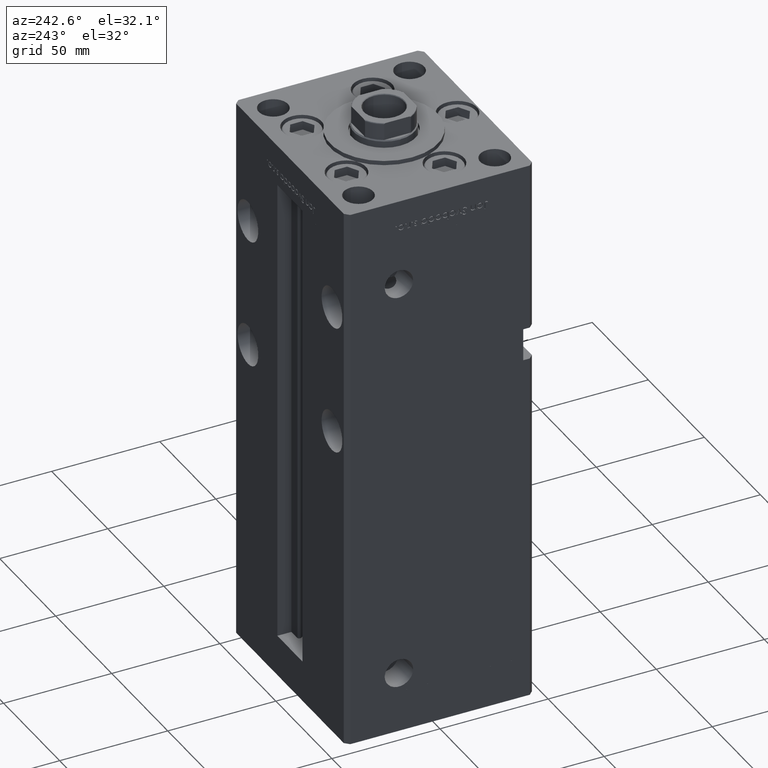
[diagram: clean part render]
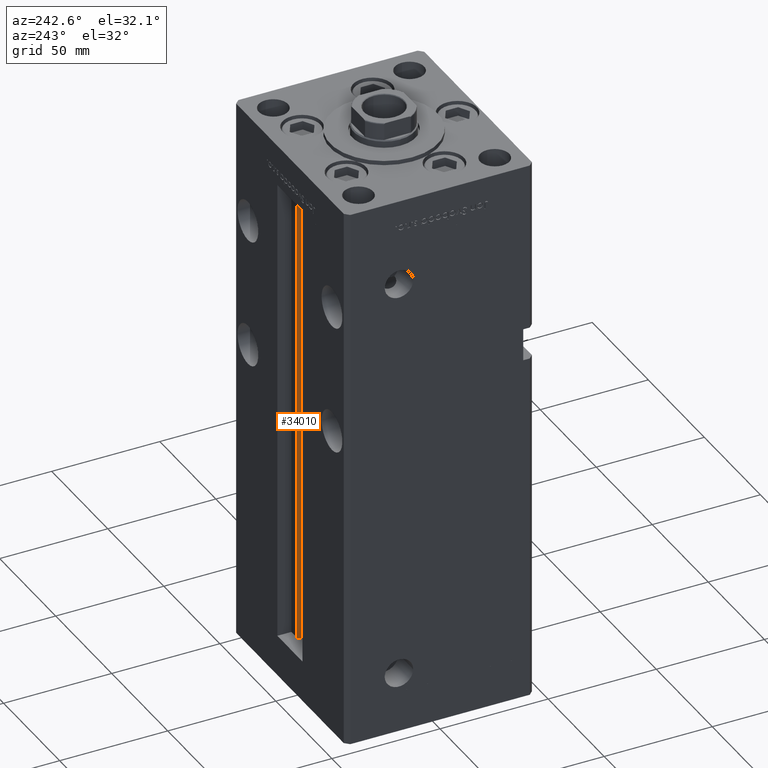
[diagram: same view with one face highlighted and labeled with its STEP entity id]
A machine part, auxiliary view. The second image highlights one B-rep face of the part: STEP entity #34010.
In plain terms, the highlighted cylindrical surface (edge-blend (fillet) strip) has radius 0.9333 mm, axis along (0, 0, 1).
Its self-contained STEP definition (entity closure, byte-faithful):
#454 = VERTEX_POINT ( 'NONE', #19195 ) ;
#4512 = CIRCLE ( 'NONE', #25137, 0.9333333333339999260 ) ;
#5644 = AXIS2_PLACEMENT_3D ( 'NONE', #52186, #39515, #48417 ) ;
#6203 = CARTESIAN_POINT ( 'NONE',  ( 6.183333333333996151, 36.06666666666599497, 0.000000000000000000 ) ) ;
#6371 = VERTEX_POINT ( 'NONE', #37663 ) ;
#6751 = LINE ( 'NONE', #30723, #30068 ) ;
#7384 = EDGE_CURVE ( 'NONE', #20656, #6371, #6751, .T. ) ;
#7774 = CIRCLE ( 'NONE', #41312, 0.9333333333339999260 ) ;
#8099 = EDGE_CURVE ( 'NONE', #47868, #454, #51058, .T. ) ;
#11044 = DIRECTION ( 'NONE',  ( -0.000000000000000000, -0.000000000000000000, -1.000000000000000000 ) ) ;
#11871 = DIRECTION ( 'NONE',  ( 1.000000000000000000, 0.000000000000000000, 0.000000000000000000 ) ) ;
#13433 = EDGE_CURVE ( 'NONE', #47868, #20656, #7774, .T. ) ;
#18730 = EDGE_CURVE ( 'NONE', #454, #6371, #4512, .T. ) ;
#19195 = CARTESIAN_POINT ( 'NONE',  ( 5.375042956467946276, 35.59999999999899245, 218.5000000000000000 ) ) ;
#20656 = VERTEX_POINT ( 'NONE', #51284 ) ;
#22505 = CARTESIAN_POINT ( 'NONE',  ( 5.375042956467944499, 35.59999999999899245, 0.000000000000000000 ) ) ;
#23049 = ORIENTED_EDGE ( 'NONE', *, *, #8099, .T. ) ;
#23438 = DIRECTION ( 'NONE',  ( -0.000000000000000000, -0.000000000000000000, 1.000000000000000000 ) ) ;
#25137 = AXIS2_PLACEMENT_3D ( 'NONE', #40671, #28578, #11871 ) ;
#28183 = ORIENTED_EDGE ( 'NONE', *, *, #13433, .F. ) ;
#28207 = CYLINDRICAL_SURFACE ( 'NONE', #5644, 0.9333333333339999260 ) ;
#28578 = DIRECTION ( 'NONE',  ( 0.000000000000000000, 0.000000000000000000, -1.000000000000000000 ) ) ;
#30068 = VECTOR ( 'NONE', #23438, 1000.000000000000000 ) ;
#30723 = CARTESIAN_POINT ( 'NONE',  ( 6.183333333333996151, 37.00000000000000000, 0.000000000000000000 ) ) ;
#31710 = FACE_OUTER_BOUND ( 'NONE', #42681, .T. ) ;
#34010 = ADVANCED_FACE ( 'NONE', ( #31710 ), #28207, .T. ) ;
#37663 = CARTESIAN_POINT ( 'NONE',  ( 6.183333333333996151, 37.00000000000000000, 218.5000000000000000 ) ) ;
#38918 = DIRECTION ( 'NONE',  ( -0.000000000000000000, -0.000000000000000000, 1.000000000000000000 ) ) ;
#39515 = DIRECTION ( 'NONE',  ( -0.000000000000000000, -0.000000000000000000, 1.000000000000000000 ) ) ;
#40671 = CARTESIAN_POINT ( 'NONE',  ( 6.183333333333996151, 36.06666666666599497, 218.5000000000000000 ) ) ;
#41312 = AXIS2_PLACEMENT_3D ( 'NONE', #6203, #11044, #52255 ) ;
#41357 = ORIENTED_EDGE ( 'NONE', *, *, #18730, .T. ) ;
#42681 = EDGE_LOOP ( 'NONE', ( #43439, #28183, #23049, #41357 ) ) ;
#43439 = ORIENTED_EDGE ( 'NONE', *, *, #7384, .F. ) ;
#45356 = CARTESIAN_POINT ( 'NONE',  ( 5.375042956467944499, 35.59999999999899245, 0.000000000000000000 ) ) ;
#47868 = VERTEX_POINT ( 'NONE', #45356 ) ;
#48417 = DIRECTION ( 'NONE',  ( 1.000000000000000000, 0.000000000000000000, 0.000000000000000000 ) ) ;
#49822 = VECTOR ( 'NONE', #38918, 1000.000000000000000 ) ;
#51058 = LINE ( 'NONE', #22505, #49822 ) ;
#51284 = CARTESIAN_POINT ( 'NONE',  ( 6.183333333333996151, 37.00000000000000000, 0.000000000000000000 ) ) ;
#52186 = CARTESIAN_POINT ( 'NONE',  ( 6.183333333333996151, 36.06666666666599497, 0.000000000000000000 ) ) ;
#52255 = DIRECTION ( 'NONE',  ( 1.000000000000000000, 0.000000000000000000, 0.000000000000000000 ) ) ;